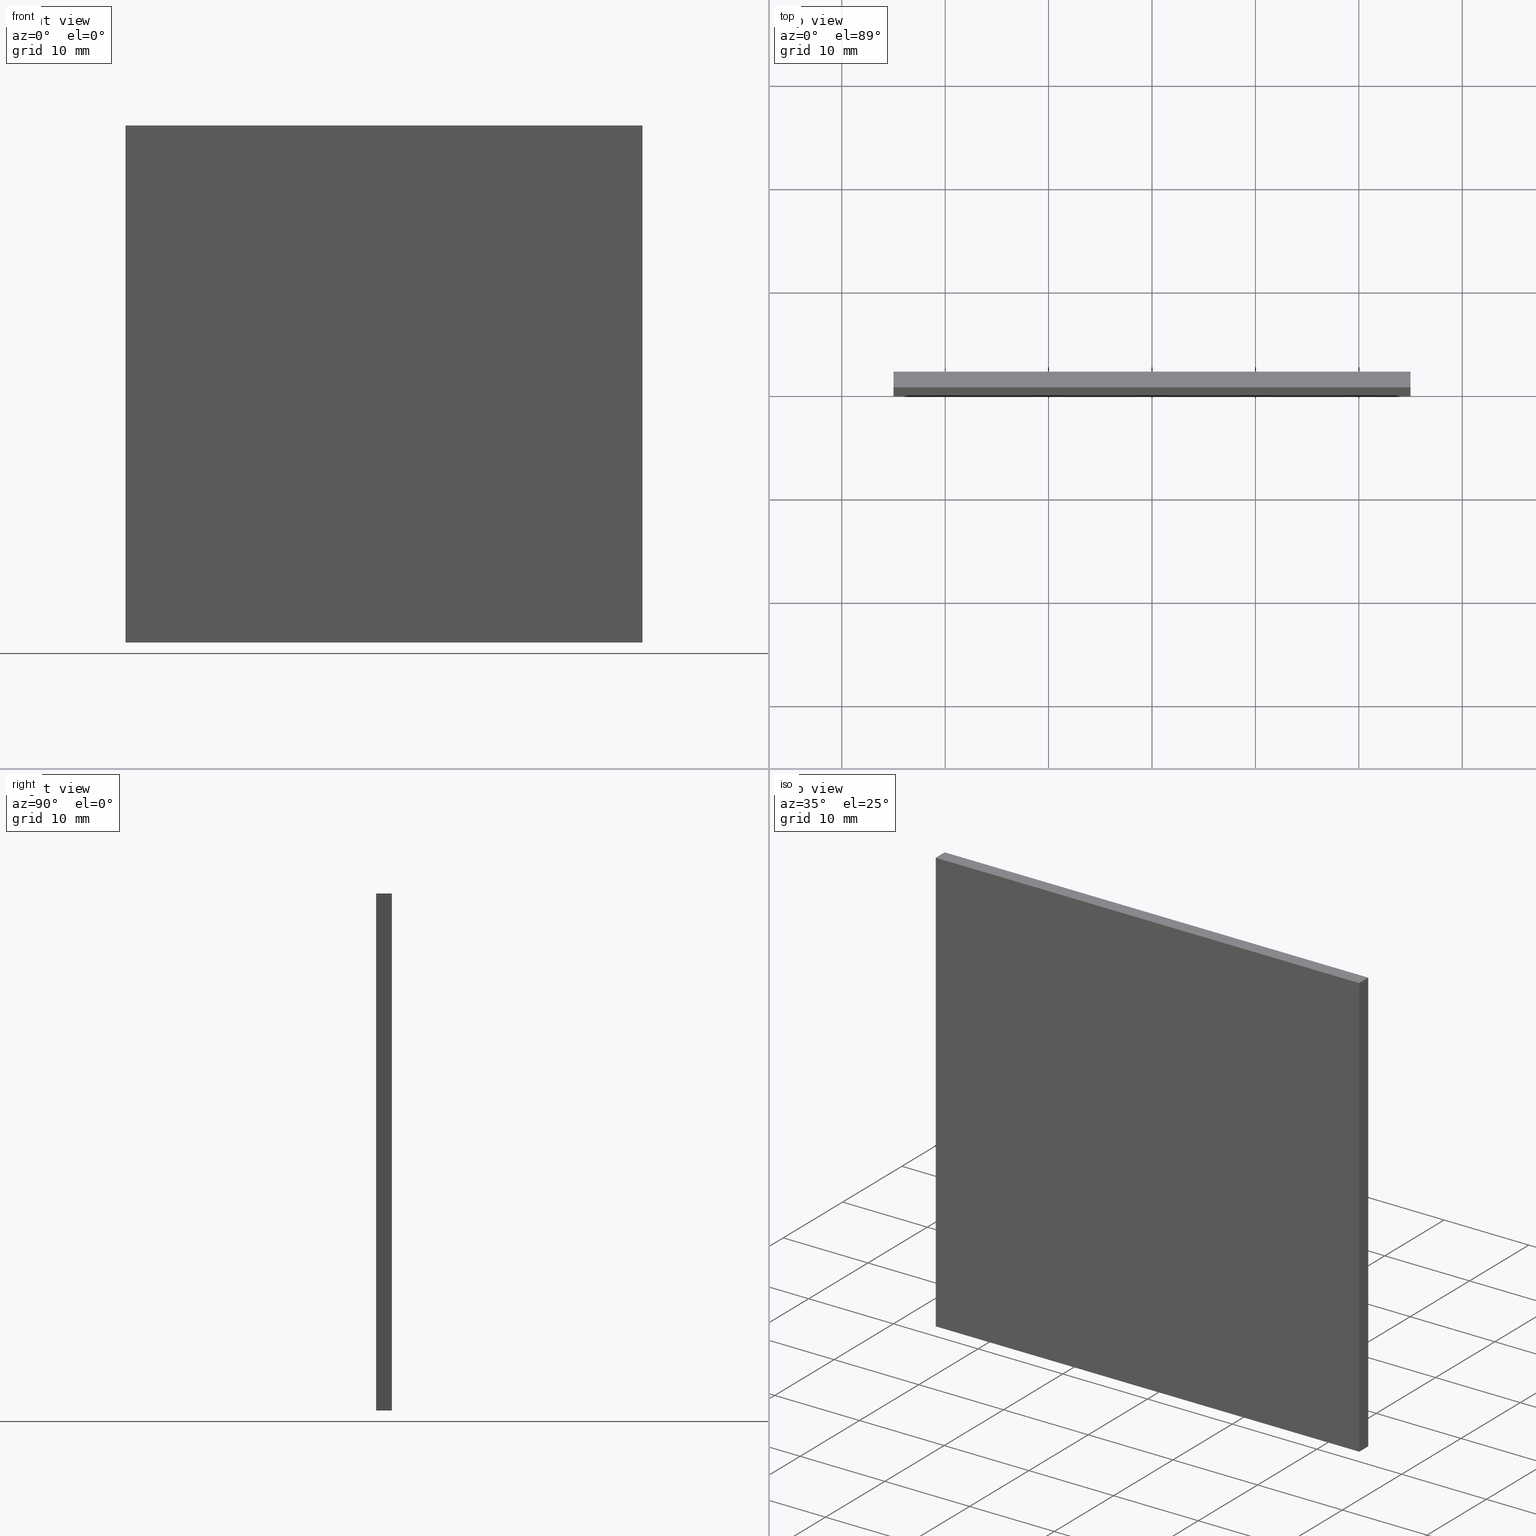
[diagram: canonical four-view strip — front | top / right | iso, engineering-drawing reading convention]
A machine part, canonical four-view strip (front | top / right | iso — engineering-drawing reading convention). The complete STEP part file that produces these views, byte-faithful:
ISO-10303-21;
HEADER;
FILE_DESCRIPTION (( 'STEP AP214' ),
    '1' );
FILE_NAME ('248610.STEP',
    '2019-08-06T06:09:31',
    ( 'user' ),
    ( '΢���й�' ),
    'SwSTEP 2.0',
    'SolidWorks 2016',
    '' );
FILE_SCHEMA (( 'AUTOMOTIVE_DESIGN' ));
ENDSEC;

DATA;
#1 = COLOUR_RGB ( '',1.000000000000000000, 1.000000000000000000, 1.000000000000000000 ) ;
#2 =( LENGTH_UNIT ( ) NAMED_UNIT ( * ) SI_UNIT ( .MILLI., .METRE. ) );
#3 = DIRECTION ( 'NONE',  ( 1.000000000000000000, 0.0000000000000000000, 0.0000000000000000000 ) ) ;
#4 = LINE ( 'NONE', #97, #154 ) ;
#5 = DIRECTION ( 'NONE',  ( 0.0000000000000000000, 0.0000000000000000000, -1.000000000000000000 ) ) ;
#6 = EDGE_CURVE ( 'NONE', #50, #91, #53, .T. ) ;
#7 = VECTOR ( 'NONE', #13, 1000.000000000000000 ) ;
#8 = ORIENTED_EDGE ( 'NONE', *, *, #180, .F. ) ;
#9 = CARTESIAN_POINT ( 'NONE',  ( 25.00000000000000700, 1.520000000000000000, 24.99999999999999600 ) ) ;
#10 = ADVANCED_FACE ( 'NONE', ( #160 ), #32, .F. ) ;
#11 = ORIENTED_EDGE ( 'NONE', *, *, #115, .F. ) ;
#12 = FACE_OUTER_BOUND ( 'NONE', #86, .T. ) ;
#13 = DIRECTION ( 'NONE',  ( 1.000000000000000000, 0.0000000000000000000, 0.0000000000000000000 ) ) ;
#14 = ORIENTED_EDGE ( 'NONE', *, *, #57, .T. ) ;
#15 = COLOUR_RGB ( '',1.000000000000000000, 1.000000000000000000, 1.000000000000000000 ) ;
#16 = ORIENTED_EDGE ( 'NONE', *, *, #133, .F. ) ;
#17 = AXIS2_PLACEMENT_3D ( 'NONE', #188, #103, #3 ) ;
#18 = CARTESIAN_POINT ( 'NONE',  ( -24.99999999999999300, 0.0000000000000000000, -25.00000000000000400 ) ) ;
#19 = DIRECTION ( 'NONE',  ( 0.0000000000000000000, 0.0000000000000000000, -1.000000000000000000 ) ) ;
#20 = CARTESIAN_POINT ( 'NONE',  ( 25.00000000000000700, 0.0000000000000000000, -25.00000000000000400 ) ) ;
#21 = CARTESIAN_POINT ( 'NONE',  ( -24.99999999999999300, 1.520000000000000000, -25.00000000000000400 ) ) ;
#22 = DIRECTION ( 'NONE',  ( 1.000000000000000000, 0.0000000000000000000, 0.0000000000000000000 ) ) ;
#23 =( NAMED_UNIT ( * ) SI_UNIT ( $, .STERADIAN. ) SOLID_ANGLE_UNIT ( ) );
#24 = PRESENTATION_LAYER_ASSIGNMENT (  '', '', ( #195 ) ) ;
#25 = APPLICATION_CONTEXT ( 'automotive_design' ) ;
#26 = SURFACE_STYLE_FILL_AREA ( #40 ) ;
#27 = DIRECTION ( 'NONE',  ( -1.000000000000000000, 0.0000000000000000000, -0.0000000000000000000 ) ) ;
#28 =( GEOMETRIC_REPRESENTATION_CONTEXT ( 3 ) GLOBAL_UNCERTAINTY_ASSIGNED_CONTEXT ( ( #183 ) ) GLOBAL_UNIT_ASSIGNED_CONTEXT ( ( #157, #74, #171 ) ) REPRESENTATION_CONTEXT ( 'NONE', 'WORKASPACE' ) );
#29 = ADVANCED_FACE ( 'NONE', ( #62 ), #129, .F. ) ;
#30 = CARTESIAN_POINT ( 'NONE',  ( -24.99999999999999300, 1.520000000000000000, 24.99999999999999600 ) ) ;
#31 = VERTEX_POINT ( 'NONE', #43 ) ;
#32 = PLANE ( 'NONE',  #139 ) ;
#33 = CARTESIAN_POINT ( 'NONE',  ( -24.99999999999999300, 0.0000000000000000000, 24.99999999999999600 ) ) ;
#34 = ORIENTED_EDGE ( 'NONE', *, *, #106, .F. ) ;
#35 = CARTESIAN_POINT ( 'NONE',  ( -24.99999999999999300, 0.0000000000000000000, -25.00000000000000400 ) ) ;
#36 = DIRECTION ( 'NONE',  ( -0.0000000000000000000, -0.0000000000000000000, 1.000000000000000000 ) ) ;
#37 = CARTESIAN_POINT ( 'NONE',  ( -24.99999999999999300, 1.520000000000000000, -25.00000000000000400 ) ) ;
#38 = SHAPE_DEFINITION_REPRESENTATION ( #68, #198 ) ;
#39 = DIRECTION ( 'NONE',  ( -0.0000000000000000000, -0.0000000000000000000, 1.000000000000000000 ) ) ;
#40 = FILL_AREA_STYLE ('',( #156 ) ) ;
#41 = ORIENTED_EDGE ( 'NONE', *, *, #180, .T. ) ;
#42 = VECTOR ( 'NONE', #19, 1000.000000000000000 ) ;
#43 = CARTESIAN_POINT ( 'NONE',  ( 25.00000000000000700, 1.520000000000000000, 24.99999999999999600 ) ) ;
#44 = VERTEX_POINT ( 'NONE', #190 ) ;
#45 = MECHANICAL_DESIGN_GEOMETRIC_PRESENTATION_REPRESENTATION (  '', ( #195 ), #28 ) ;
#46 = VECTOR ( 'NONE', #161, 1000.000000000000000 ) ;
#47 = AXIS2_PLACEMENT_3D ( 'NONE', #60, #196, #202 ) ;
#48 = ORIENTED_EDGE ( 'NONE', *, *, #82, .T. ) ;
#49 = FACE_OUTER_BOUND ( 'NONE', #117, .T. ) ;
#50 = VERTEX_POINT ( 'NONE', #80 ) ;
#51 = SURFACE_STYLE_FILL_AREA ( #87 ) ;
#52 = EDGE_CURVE ( 'NONE', #120, #31, #141, .T. ) ;
#53 = LINE ( 'NONE', #147, #46 ) ;
#54 = FACE_OUTER_BOUND ( 'NONE', #132, .T. ) ;
#55 = ORIENTED_EDGE ( 'NONE', *, *, #133, .T. ) ;
#56 = PLANE ( 'NONE',  #47 ) ;
#57 = EDGE_CURVE ( 'NONE', #44, #148, #128, .T. ) ;
#58 = DIRECTION ( 'NONE',  ( 0.0000000000000000000, 0.0000000000000000000, -1.000000000000000000 ) ) ;
#59 =( NAMED_UNIT ( * ) PLANE_ANGLE_UNIT ( ) SI_UNIT ( $, .RADIAN. ) );
#60 = CARTESIAN_POINT ( 'NONE',  ( -24.99999999999999300, 1.520000000000000000, 24.99999999999999600 ) ) ;
#61 =( LENGTH_UNIT ( ) NAMED_UNIT ( * ) SI_UNIT ( .MILLI., .METRE. ) );
#62 = FACE_OUTER_BOUND ( 'NONE', #179, .T. ) ;
#63 = SURFACE_STYLE_USAGE ( .BOTH. , #140 ) ;
#64 = STYLED_ITEM ( 'NONE', ( #163 ), #200 ) ;
#65 = ORIENTED_EDGE ( 'NONE', *, *, #106, .T. ) ;
#66 =( GEOMETRIC_REPRESENTATION_CONTEXT ( 3 ) GLOBAL_UNCERTAINTY_ASSIGNED_CONTEXT ( ( #177 ) ) GLOBAL_UNIT_ASSIGNED_CONTEXT ( ( #2, #113, #23 ) ) REPRESENTATION_CONTEXT ( 'NONE', 'WORKASPACE' ) );
#67 = VECTOR ( 'NONE', #39, 1000.000000000000000 ) ;
#68 = PRODUCT_DEFINITION_SHAPE ( 'NONE', 'NONE',  #172 ) ;
#69 = CLOSED_SHELL ( 'NONE', ( #29, #100, #142, #10, #75, #143 ) ) ;
#70 = PRESENTATION_LAYER_ASSIGNMENT (  '', '', ( #64 ) ) ;
#71 = PRODUCT ( '248610', '248610', '', ( #114 ) ) ;
#72 = DIRECTION ( 'NONE',  ( 0.0000000000000000000, -1.000000000000000000, 0.0000000000000000000 ) ) ;
#73 = CARTESIAN_POINT ( 'NONE',  ( 25.00000000000000700, 1.520000000000000000, -25.00000000000000400 ) ) ;
#74 =( NAMED_UNIT ( * ) PLANE_ANGLE_UNIT ( ) SI_UNIT ( $, .RADIAN. ) );
#75 = ADVANCED_FACE ( 'NONE', ( #12 ), #85, .F. ) ;
#76 = ORIENTED_EDGE ( 'NONE', *, *, #6, .T. ) ;
#77 = ORIENTED_EDGE ( 'NONE', *, *, #191, .F. ) ;
#78 = LINE ( 'NONE', #73, #175 ) ;
#79 = CARTESIAN_POINT ( 'NONE',  ( 25.00000000000000700, 0.0000000000000000000, 24.99999999999999600 ) ) ;
#80 = CARTESIAN_POINT ( 'NONE',  ( -24.99999999999999300, 1.520000000000000000, -25.00000000000000400 ) ) ;
#81 = LINE ( 'NONE', #186, #185 ) ;
#82 = EDGE_CURVE ( 'NONE', #31, #176, #84, .T. ) ;
#83 = ORIENTED_EDGE ( 'NONE', *, *, #178, .T. ) ;
#84 = LINE ( 'NONE', #137, #95 ) ;
#85 = PLANE ( 'NONE',  #130 ) ;
#86 = EDGE_LOOP ( 'NONE', ( #48, #89, #41, #165 ) ) ;
#87 = FILL_AREA_STYLE ('',( #169 ) ) ;
#88 = PRESENTATION_STYLE_ASSIGNMENT (( #63 ) ) ;
#89 = ORIENTED_EDGE ( 'NONE', *, *, #115, .T. ) ;
#90 =( GEOMETRIC_REPRESENTATION_CONTEXT ( 3 ) GLOBAL_UNCERTAINTY_ASSIGNED_CONTEXT ( ( #162 ) ) GLOBAL_UNIT_ASSIGNED_CONTEXT ( ( #61, #59, #153 ) ) REPRESENTATION_CONTEXT ( 'NONE', 'WORKASPACE' ) );
#91 = VERTEX_POINT ( 'NONE', #18 ) ;
#92 = EDGE_CURVE ( 'NONE', #148, #91, #193, .T. ) ;
#93 = DIRECTION ( 'NONE',  ( 0.0000000000000000000, 0.0000000000000000000, 1.000000000000000000 ) ) ;
#94 = EDGE_LOOP ( 'NONE', ( #182, #127, #158, #65 ) ) ;
#95 = VECTOR ( 'NONE', #58, 1000.000000000000000 ) ;
#96 = LINE ( 'NONE', #167, #67 ) ;
#97 = CARTESIAN_POINT ( 'NONE',  ( -24.99999999999999300, 1.520000000000000000, 24.99999999999999600 ) ) ;
#98 = LINE ( 'NONE', #101, #159 ) ;
#99 = CARTESIAN_POINT ( 'NONE',  ( 0.0000000000000000000, 1.520000000000000000, 0.0000000000000000000 ) ) ;
#100 = ADVANCED_FACE ( 'NONE', ( #152 ), #111, .F. ) ;
#101 = CARTESIAN_POINT ( 'NONE',  ( -24.99999999999999300, 0.0000000000000000000, 24.99999999999999600 ) ) ;
#102 = SURFACE_STYLE_USAGE ( .BOTH. , #187 ) ;
#103 = DIRECTION ( 'NONE',  ( 0.0000000000000000000, 0.0000000000000000000, 1.000000000000000000 ) ) ;
#104 = ORIENTED_EDGE ( 'NONE', *, *, #168, .T. ) ;
#105 = AXIS2_PLACEMENT_3D ( 'NONE', #9, #118, #93 ) ;
#106 = EDGE_CURVE ( 'NONE', #120, #134, #4, .T. ) ;
#107 = ORIENTED_EDGE ( 'NONE', *, *, #6, .F. ) ;
#108 = EDGE_LOOP ( 'NONE', ( #194, #107, #11, #104 ) ) ;
#109 = DIRECTION ( 'NONE',  ( 0.0000000000000000000, -1.000000000000000000, 0.0000000000000000000 ) ) ;
#110 = DIRECTION ( 'NONE',  ( 0.0000000000000000000, 0.0000000000000000000, 1.000000000000000000 ) ) ;
#111 = PLANE ( 'NONE',  #146 ) ;
#112 = DIRECTION ( 'NONE',  ( -0.0000000000000000000, -1.000000000000000000, -0.0000000000000000000 ) ) ;
#113 =( NAMED_UNIT ( * ) PLANE_ANGLE_UNIT ( ) SI_UNIT ( $, .RADIAN. ) );
#114 = PRODUCT_CONTEXT ( 'NONE', #184, 'mechanical' ) ;
#115 = EDGE_CURVE ( 'NONE', #176, #50, #135, .T. ) ;
#116 = PRODUCT_DEFINITION_CONTEXT ( 'detailed design', #25, 'design' ) ;
#117 = EDGE_LOOP ( 'NONE', ( #122, #77, #16, #150 ) ) ;
#118 = DIRECTION ( 'NONE',  ( -1.000000000000000000, 0.0000000000000000000, 0.0000000000000000000 ) ) ;
#119 = CARTESIAN_POINT ( 'NONE',  ( -24.99999999999999300, 1.520000000000000000, 24.99999999999999600 ) ) ;
#120 = VERTEX_POINT ( 'NONE', #149 ) ;
#121 = CARTESIAN_POINT ( 'NONE',  ( 0.0000000000000000000, 0.0000000000000000000, 0.0000000000000000000 ) ) ;
#122 = ORIENTED_EDGE ( 'NONE', *, *, #57, .F. ) ;
#123 = CARTESIAN_POINT ( 'NONE',  ( -24.99999999999999300, 0.0000000000000000000, 24.99999999999999600 ) ) ;
#124 = DIRECTION ( 'NONE',  ( -1.000000000000000000, -0.0000000000000000000, -0.0000000000000000000 ) ) ;
#125 = LINE ( 'NONE', #33, #174 ) ;
#126 = APPLICATION_PROTOCOL_DEFINITION ( 'draft international standard', 'automotive_design', 1998, #25 ) ;
#127 = ORIENTED_EDGE ( 'NONE', *, *, #178, .F. ) ;
#128 = LINE ( 'NONE', #79, #42 ) ;
#129 = PLANE ( 'NONE',  #105 ) ;
#130 = AXIS2_PLACEMENT_3D ( 'NONE', #99, #72, #151 ) ;
#131 = PRODUCT_DEFINITION_FORMATION_WITH_SPECIFIED_SOURCE ( '�κ�', '', #71, .NOT_KNOWN. ) ;
#132 = EDGE_LOOP ( 'NONE', ( #55, #34, #8, #76 ) ) ;
#133 = EDGE_CURVE ( 'NONE', #91, #134, #125, .T. ) ;
#134 = VERTEX_POINT ( 'NONE', #123 ) ;
#135 = LINE ( 'NONE', #37, #144 ) ;
#136 = PLANE ( 'NONE',  #164 ) ;
#137 = CARTESIAN_POINT ( 'NONE',  ( 25.00000000000000700, 1.520000000000000000, 24.99999999999999600 ) ) ;
#138 = CARTESIAN_POINT ( 'NONE',  ( 25.00000000000000700, 1.520000000000000000, -25.00000000000000400 ) ) ;
#139 = AXIS2_PLACEMENT_3D ( 'NONE', #30, #5, #27 ) ;
#140 = SURFACE_SIDE_STYLE ('',( #26 ) ) ;
#141 = LINE ( 'NONE', #119, #7 ) ;
#142 = ADVANCED_FACE ( 'NONE', ( #54 ), #56, .F. ) ;
#143 = ADVANCED_FACE ( 'NONE', ( #49 ), #136, .T. ) ;
#144 = VECTOR ( 'NONE', #181, 1000.000000000000000 ) ;
#145 = PRODUCT_RELATED_PRODUCT_CATEGORY ( 'part', '', ( #71 ) ) ;
#146 = AXIS2_PLACEMENT_3D ( 'NONE', #21, #110, #199 ) ;
#147 = CARTESIAN_POINT ( 'NONE',  ( -24.99999999999999300, 1.520000000000000000, -25.00000000000000400 ) ) ;
#148 = VERTEX_POINT ( 'NONE', #20 ) ;
#149 = CARTESIAN_POINT ( 'NONE',  ( -24.99999999999999300, 1.520000000000000000, 24.99999999999999600 ) ) ;
#150 = ORIENTED_EDGE ( 'NONE', *, *, #92, .F. ) ;
#151 = DIRECTION ( 'NONE',  ( 0.0000000000000000000, -0.0000000000000000000, -1.000000000000000000 ) ) ;
#152 = FACE_OUTER_BOUND ( 'NONE', #108, .T. ) ;
#153 =( NAMED_UNIT ( * ) SI_UNIT ( $, .STERADIAN. ) SOLID_ANGLE_UNIT ( ) );
#154 = VECTOR ( 'NONE', #197, 1000.000000000000000 ) ;
#155 = DIRECTION ( 'NONE',  ( -0.0000000000000000000, -1.000000000000000000, -0.0000000000000000000 ) ) ;
#156 = FILL_AREA_STYLE_COLOUR ( '', #1 ) ;
#157 =( LENGTH_UNIT ( ) NAMED_UNIT ( * ) SI_UNIT ( .MILLI., .METRE. ) );
#158 = ORIENTED_EDGE ( 'NONE', *, *, #52, .F. ) ;
#159 = VECTOR ( 'NONE', #22, 1000.000000000000000 ) ;
#160 = FACE_OUTER_BOUND ( 'NONE', #94, .T. ) ;
#161 = DIRECTION ( 'NONE',  ( -0.0000000000000000000, -1.000000000000000000, -0.0000000000000000000 ) ) ;
#162 = UNCERTAINTY_MEASURE_WITH_UNIT (LENGTH_MEASURE( 1.000000000000000100E-005 ), #61, 'distance_accuracy_value', 'NONE');
#163 = PRESENTATION_STYLE_ASSIGNMENT (( #102 ) ) ;
#164 = AXIS2_PLACEMENT_3D ( 'NONE', #121, #109, #201 ) ;
#165 = ORIENTED_EDGE ( 'NONE', *, *, #52, .T. ) ;
#166 = APPLICATION_PROTOCOL_DEFINITION ( 'draft international standard', 'automotive_design', 1998, #184 ) ;
#167 = CARTESIAN_POINT ( 'NONE',  ( -24.99999999999999300, 1.520000000000000000, 24.99999999999999600 ) ) ;
#168 = EDGE_CURVE ( 'NONE', #176, #148, #78, .T. ) ;
#169 = FILL_AREA_STYLE_COLOUR ( '', #15 ) ;
#170 = VECTOR ( 'NONE', #124, 1000.000000000000000 ) ;
#171 =( NAMED_UNIT ( * ) SI_UNIT ( $, .STERADIAN. ) SOLID_ANGLE_UNIT ( ) );
#172 = PRODUCT_DEFINITION ( 'δ֪', '', #131, #116 ) ;
#173 = MECHANICAL_DESIGN_GEOMETRIC_PRESENTATION_REPRESENTATION (  '', ( #64 ), #66 ) ;
#174 = VECTOR ( 'NONE', #36, 1000.000000000000000 ) ;
#175 = VECTOR ( 'NONE', #155, 1000.000000000000000 ) ;
#176 = VERTEX_POINT ( 'NONE', #138 ) ;
#177 = UNCERTAINTY_MEASURE_WITH_UNIT (LENGTH_MEASURE( 1.000000000000000100E-005 ), #2, 'distance_accuracy_value', 'NONE');
#178 = EDGE_CURVE ( 'NONE', #31, #44, #81, .T. ) ;
#179 = EDGE_LOOP ( 'NONE', ( #14, #189, #192, #83 ) ) ;
#180 = EDGE_CURVE ( 'NONE', #50, #120, #96, .T. ) ;
#181 = DIRECTION ( 'NONE',  ( -1.000000000000000000, -0.0000000000000000000, -0.0000000000000000000 ) ) ;
#182 = ORIENTED_EDGE ( 'NONE', *, *, #191, .T. ) ;
#183 = UNCERTAINTY_MEASURE_WITH_UNIT (LENGTH_MEASURE( 1.000000000000000100E-005 ), #157, 'distance_accuracy_value', 'NONE');
#184 = APPLICATION_CONTEXT ( 'automotive_design' ) ;
#185 = VECTOR ( 'NONE', #112, 1000.000000000000000 ) ;
#186 = CARTESIAN_POINT ( 'NONE',  ( 25.00000000000000700, 1.520000000000000000, 24.99999999999999600 ) ) ;
#187 = SURFACE_SIDE_STYLE ('',( #51 ) ) ;
#188 = CARTESIAN_POINT ( 'NONE',  ( 0.0000000000000000000, 0.0000000000000000000, 0.0000000000000000000 ) ) ;
#189 = ORIENTED_EDGE ( 'NONE', *, *, #168, .F. ) ;
#190 = CARTESIAN_POINT ( 'NONE',  ( 25.00000000000000700, 0.0000000000000000000, 24.99999999999999600 ) ) ;
#191 = EDGE_CURVE ( 'NONE', #134, #44, #98, .T. ) ;
#192 = ORIENTED_EDGE ( 'NONE', *, *, #82, .F. ) ;
#193 = LINE ( 'NONE', #35, #170 ) ;
#194 = ORIENTED_EDGE ( 'NONE', *, *, #92, .T. ) ;
#195 = STYLED_ITEM ( 'NONE', ( #88 ), #198 ) ;
#196 = DIRECTION ( 'NONE',  ( 1.000000000000000000, -0.0000000000000000000, 0.0000000000000000000 ) ) ;
#197 = DIRECTION ( 'NONE',  ( -0.0000000000000000000, -1.000000000000000000, -0.0000000000000000000 ) ) ;
#198 = ADVANCED_BREP_SHAPE_REPRESENTATION ( '248610', ( #200, #17 ), #90 ) ;
#199 = DIRECTION ( 'NONE',  ( 1.000000000000000000, 0.0000000000000000000, -0.0000000000000000000 ) ) ;
#200 = MANIFOLD_SOLID_BREP ( '͹̨-����1', #69 ) ;
#201 = DIRECTION ( 'NONE',  ( 0.0000000000000000000, -0.0000000000000000000, -1.000000000000000000 ) ) ;
#202 = DIRECTION ( 'NONE',  ( 0.0000000000000000000, 0.0000000000000000000, -1.000000000000000000 ) ) ;
ENDSEC;
END-ISO-10303-21;
